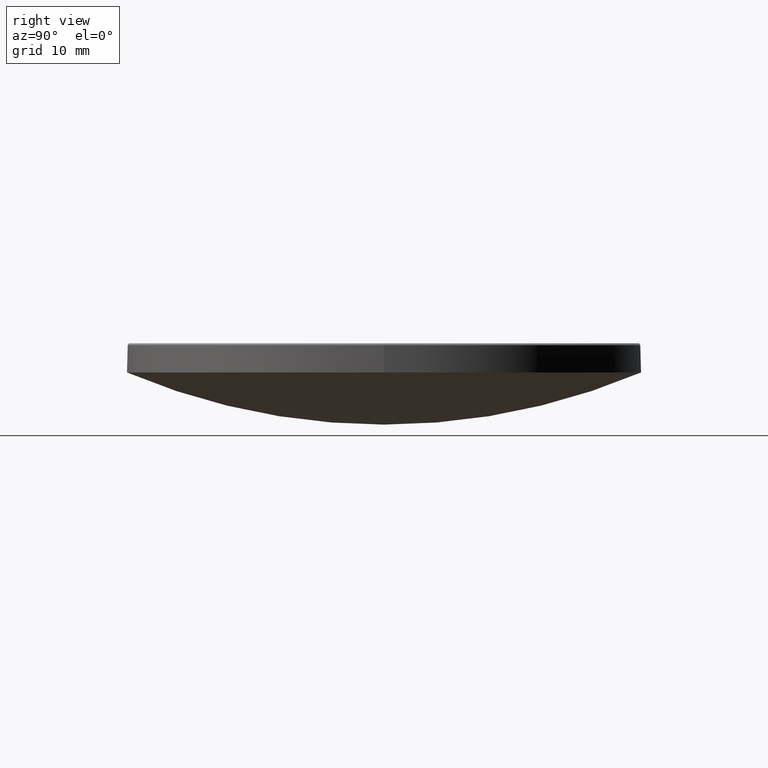
[diagram: clean part render]
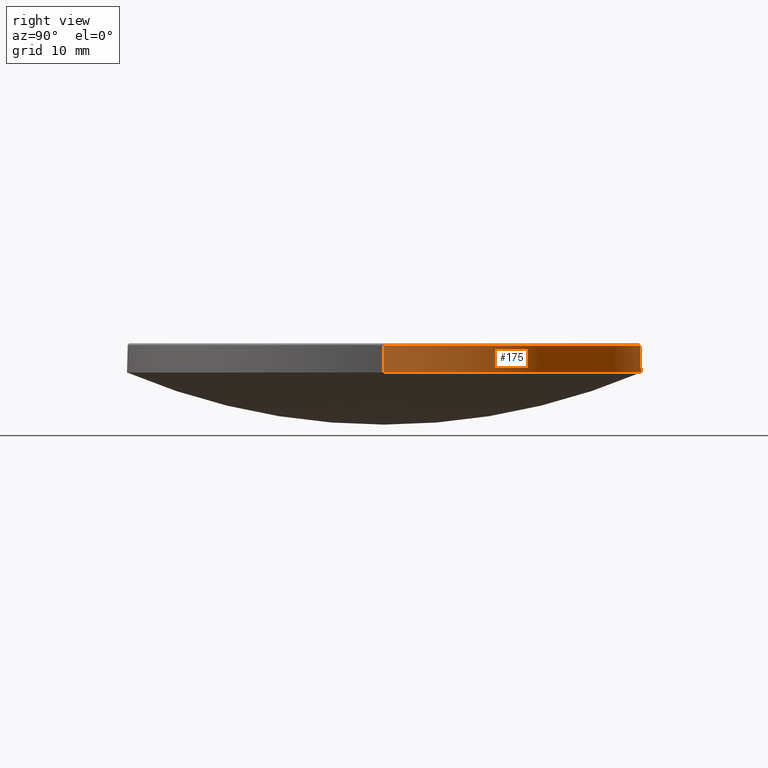
[diagram: same view with one face highlighted and labeled with its STEP entity id]
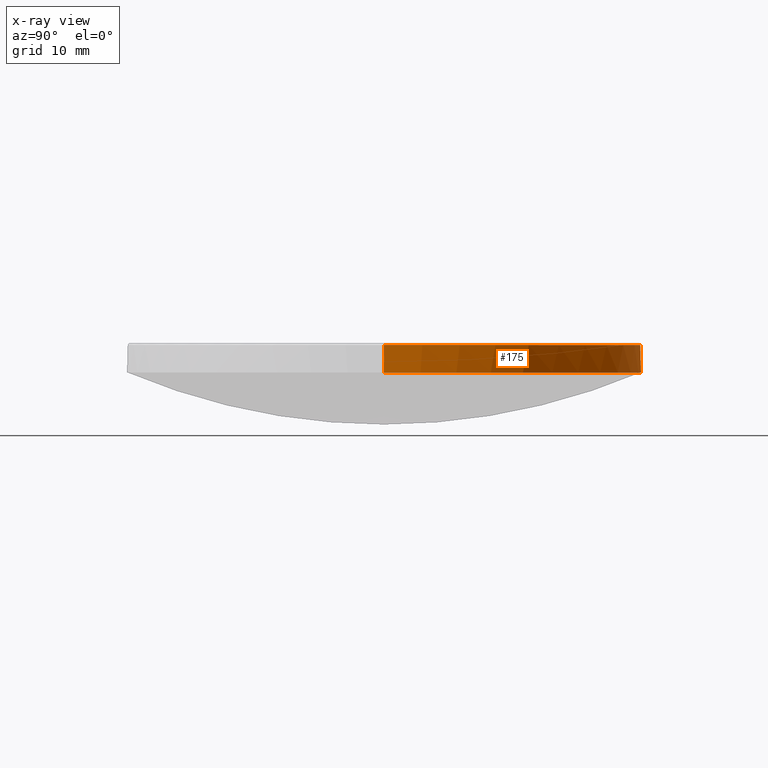
[diagram: x-ray of the same camera — body ghosted, the highlighted face saturated]
A machine part, right view. The second image highlights one B-rep face of the part: STEP entity #175.
The next image is the same camera in x-ray: the body ghosted, the highlighted face saturated — about 0% of this face is hidden behind the body in this view.
In plain terms, the highlighted cylindrical surface (partial cylindrical patch) has radius 25.4 mm, axis along (-0, -0, -1).
Its self-contained STEP definition (entity closure, byte-faithful):
#3 = CARTESIAN_POINT ( 'NONE',  ( 25.39999999999999858, 3.110602869834276865E-15, 15.69999999999996376 ) ) ;
#6 = VECTOR ( 'NONE', #169, 1000.000000000000000 ) ;
#10 = CIRCLE ( 'NONE', #280, 25.39999999999999503 ) ;
#14 = EDGE_LOOP ( 'NONE', ( #213, #42, #232, #189, #61 ) ) ;
#19 = FACE_OUTER_BOUND ( 'NONE', #14, .T. ) ;
#20 = CYLINDRICAL_SURFACE ( 'NONE', #36, 25.39999999999999858 ) ;
#21 = VECTOR ( 'NONE', #74, 1000.000000000000000 ) ;
#28 = DIRECTION ( 'NONE',  ( 1.000000000000000000, 0.000000000000000000, 0.000000000000000000 ) ) ;
#36 = AXIS2_PLACEMENT_3D ( 'NONE', #128, #216, #72 ) ;
#42 = ORIENTED_EDGE ( 'NONE', *, *, #250, .T. ) ;
#44 = CARTESIAN_POINT ( 'NONE',  ( 0.000000000000000000, 25.39999999999998437, 12.99999999999999822 ) ) ;
#53 = EDGE_CURVE ( 'NONE', #229, #187, #109, .T. ) ;
#54 = CARTESIAN_POINT ( 'NONE',  ( -25.39999999999999858, 0.000000000000000000, 15.69999999999996376 ) ) ;
#61 = ORIENTED_EDGE ( 'NONE', *, *, #162, .F. ) ;
#64 = CARTESIAN_POINT ( 'NONE',  ( 0.000000000000000000, 0.000000000000000000, 15.69999999999996376 ) ) ;
#72 = DIRECTION ( 'NONE',  ( -1.000000000000000000, 0.000000000000000000, 0.000000000000000000 ) ) ;
#74 = DIRECTION ( 'NONE',  ( -0.000000000000000000, -0.000000000000000000, -1.000000000000000000 ) ) ;
#98 = CARTESIAN_POINT ( 'NONE',  ( 25.39999999999999858, 3.110602869834276865E-15, 20.00000000000000000 ) ) ;
#109 = CIRCLE ( 'NONE', #263, 25.39999999999999858 ) ;
#113 = CARTESIAN_POINT ( 'NONE',  ( -25.39999999999999858, 0.000000000000000000, 20.00000000000000000 ) ) ;
#128 = CARTESIAN_POINT ( 'NONE',  ( 0.000000000000000000, 0.000000000000000000, 20.00000000000000000 ) ) ;
#132 = LINE ( 'NONE', #113, #6 ) ;
#147 = DIRECTION ( 'NONE',  ( 0.000000000000000000, 0.000000000000000000, -1.000000000000000000 ) ) ;
#148 = EDGE_CURVE ( 'NONE', #164, #160, #159, .T. ) ;
#152 = CARTESIAN_POINT ( 'NONE',  ( 25.39999999999999503, 3.110602869834276471E-15, 13.00000000000000000 ) ) ;
#159 = CIRCLE ( 'NONE', #249, 25.39999999999999503 ) ;
#160 = VERTEX_POINT ( 'NONE', #261 ) ;
#162 = EDGE_CURVE ( 'NONE', #229, #160, #132, .T. ) ;
#164 = VERTEX_POINT ( 'NONE', #44 ) ;
#166 = DIRECTION ( 'NONE',  ( -0.000000000000000000, -0.000000000000000000, 1.000000000000000000 ) ) ;
#169 = DIRECTION ( 'NONE',  ( -0.000000000000000000, -0.000000000000000000, -1.000000000000000000 ) ) ;
#174 = LINE ( 'NONE', #98, #21 ) ;
#175 = ADVANCED_FACE ( 'NONE', ( #19 ), #20, .T. ) ;
#187 = VERTEX_POINT ( 'NONE', #3 ) ;
#189 = ORIENTED_EDGE ( 'NONE', *, *, #148, .T. ) ;
#193 = DIRECTION ( 'NONE',  ( 1.000000000000000000, 0.000000000000000000, 0.000000000000000000 ) ) ;
#210 = VERTEX_POINT ( 'NONE', #152 ) ;
#213 = ORIENTED_EDGE ( 'NONE', *, *, #53, .T. ) ;
#216 = DIRECTION ( 'NONE',  ( -0.000000000000000000, -0.000000000000000000, -1.000000000000000000 ) ) ;
#229 = VERTEX_POINT ( 'NONE', #54 ) ;
#232 = ORIENTED_EDGE ( 'NONE', *, *, #262, .T. ) ;
#236 = DIRECTION ( 'NONE',  ( 1.000000000000000000, 0.000000000000000000, 0.000000000000000000 ) ) ;
#238 = CARTESIAN_POINT ( 'NONE',  ( 0.000000000000000000, 0.000000000000000000, 13.00000000000000000 ) ) ;
#245 = CARTESIAN_POINT ( 'NONE',  ( 0.000000000000000000, 0.000000000000000000, 13.00000000000000000 ) ) ;
#249 = AXIS2_PLACEMENT_3D ( 'NONE', #238, #166, #193 ) ;
#250 = EDGE_CURVE ( 'NONE', #187, #210, #174, .T. ) ;
#261 = CARTESIAN_POINT ( 'NONE',  ( -25.39999999999999503, 0.000000000000000000, 13.00000000000000000 ) ) ;
#262 = EDGE_CURVE ( 'NONE', #210, #164, #10, .T. ) ;
#263 = AXIS2_PLACEMENT_3D ( 'NONE', #64, #147, #236 ) ;
#268 = DIRECTION ( 'NONE',  ( -0.000000000000000000, -0.000000000000000000, 1.000000000000000000 ) ) ;
#280 = AXIS2_PLACEMENT_3D ( 'NONE', #245, #268, #28 ) ;